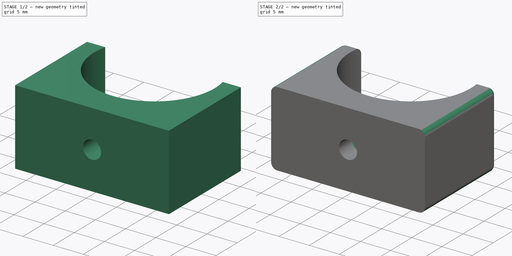
[diagram: build sequence overview — one tinted view per stage of 2, left to right]
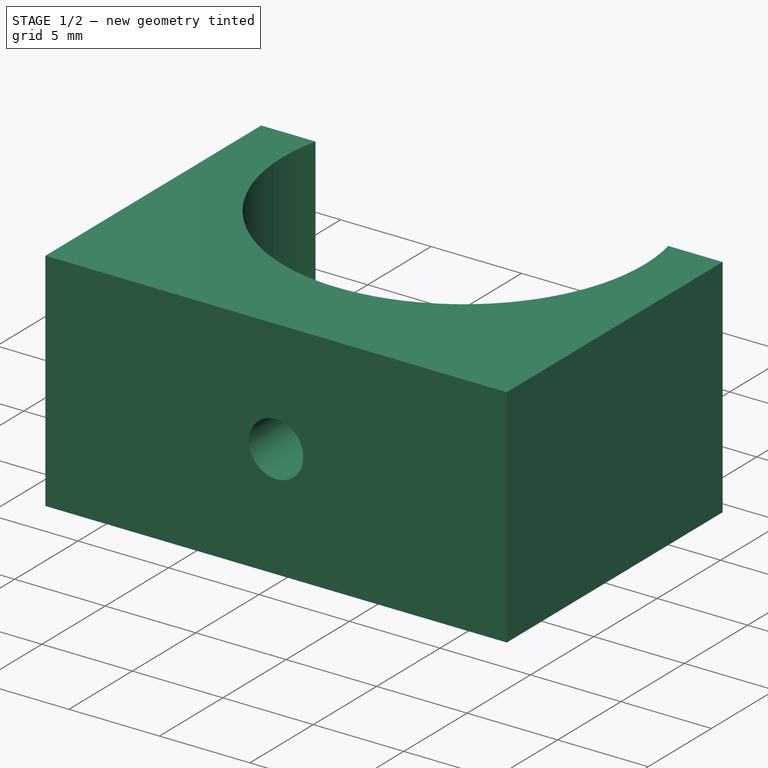
[diagram: stage 1 of 2 — iso view after this stage's code; geometry added in this stage tinted green]
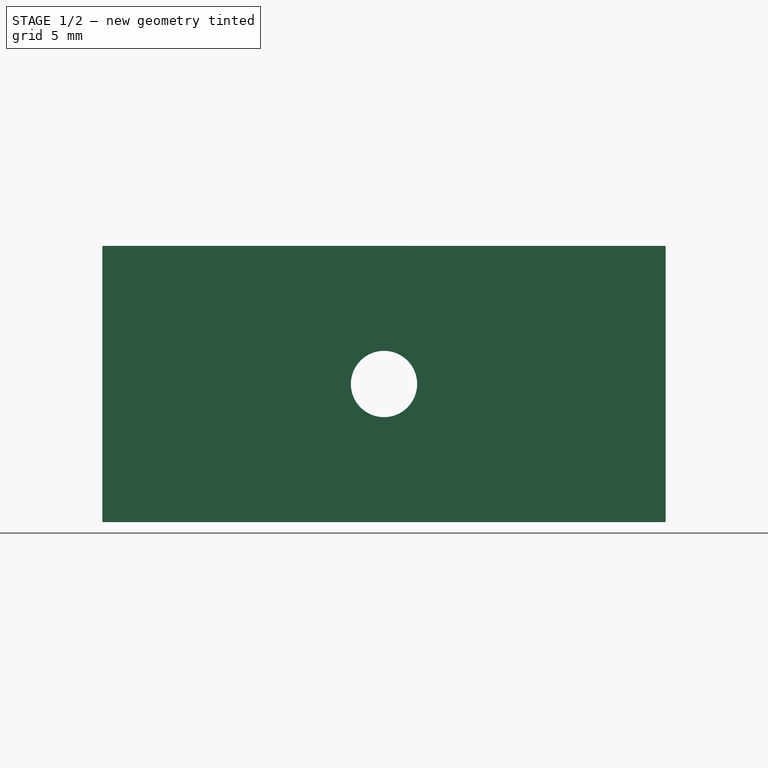
[diagram: stage 1 of 2 — front view after this stage's code; geometry added in this stage tinted green]
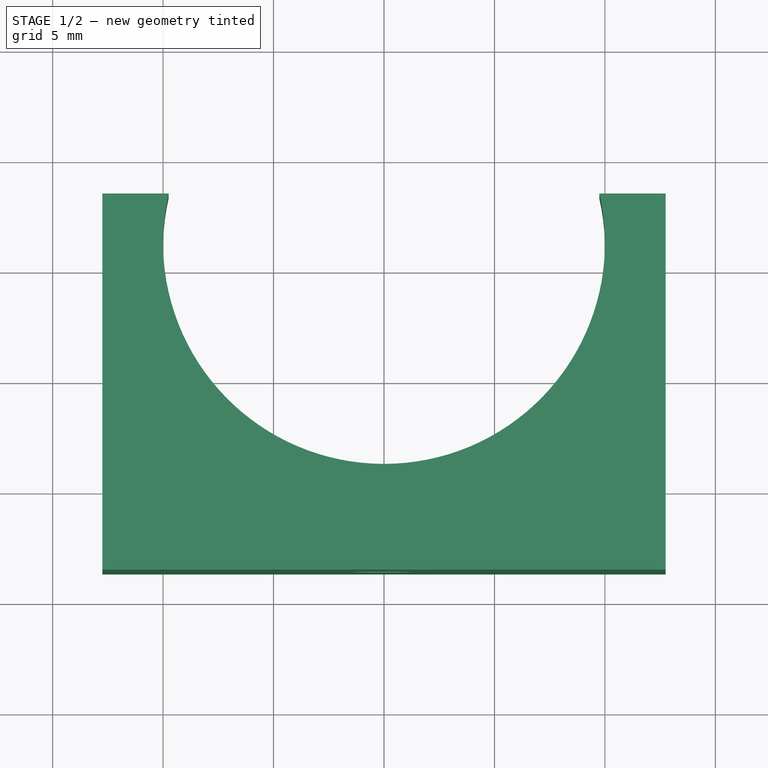
[diagram: stage 1 of 2 — top view after this stage's code; geometry added in this stage tinted green]
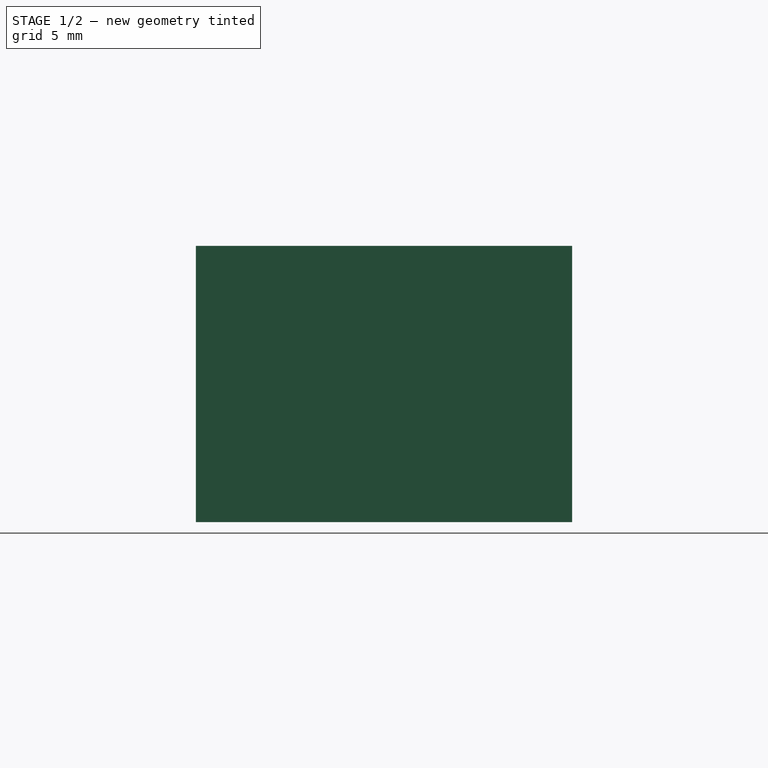
[diagram: stage 1 of 2 — right view after this stage's code; geometry added in this stage tinted green]
FCSTD DOCUMENT  (FreeCAD 0.20R29177 (Git))
Label: Glue Clip
License: All rights reserved
LicenseURL: http://en.wikipedia.org/wiki/All_rights_reserved
objects: Sketcher::SketchObject×3, PartDesign::Pocket×2, PartDesign::Pad×1, PartDesign::Fillet×1, PartDesign::Body×1
note: 12 computed .brp shape members not serialized (recipe doc carries the construction recipe); baked Part::Feature solids carry a one-line shape summary decoded from their .brp

FEATURE [Sketcher::SketchObject] Sketch
  FullyConstrained = false
  MapMode = 5
  Support = -> [XY_Plane]
  sketch-geometry (7):
    g0: LineSegment StartX=-12.746 StartY=-3.65062 StartZ=0 EndX=12.746 EndY=-3.65062 EndZ=0
    g1: GeomPoint X=0 Y=-3.65062 Z=0
    g2: ArcOfCircle CenterX=1e-16 CenterY=11.1391 CenterZ=0 NormalX=0 NormalY=0 NormalZ=1 AngleXU=0 Radius=10 StartAngle=2.91572 EndAngle=6.50906
    g3: LineSegment StartX=-12.746 StartY=13.3786 StartZ=0 EndX=-9.74599 EndY=13.3786 EndZ=0
    g4: LineSegment StartX=9.74599 StartY=13.3786 StartZ=0 EndX=12.746 EndY=13.3786 EndZ=0
    g5: LineSegment StartX=12.746 StartY=13.3786 StartZ=0 EndX=12.746 EndY=-3.65062 EndZ=0
    g6: LineSegment StartX=-12.746 StartY=-3.65062 StartZ=0 EndX=-12.746 EndY=13.3786 EndZ=0
  constraints (17):
    c: Horizontal(g0)
    c: PointOnObject(g1,g-2)
    c: Symmetric(g0,g0,g1)
    c: Horizontal(g4,g3)
    c: Coincident(g3,g2)
    c: Horizontal(g3)
    c: Coincident(g4,g2)
    c: Horizontal(g4)
    c: Diameter(g2) = 20
    c: DistanceX(g3,g3) = 3
    c: Coincident(g5,g4)
    c: Coincident(g5,g0)
    c: Vertical(g5)
    c: Coincident(g6,g0)
    c: Coincident(g6,g3)
    c: Vertical(g6)
    c: Equal(g4,g3)
FEATURE [PartDesign::Pad] Pad
  Direction = (0,0,1)
  Length = 12.5
  Length2 = 10
  Profile = -> Sketch
  ReferenceAxis = -> Sketch [N_Axis]
  Type = 0
FEATURE [Sketcher::SketchObject] Sketch001
  ExternalGeometry = -> [Pad]
  FullyConstrained = true
  MapMode = 5
  Placement = pos=(0,-3.65062,0) rot=(1,0,0;1.5708rad)
  Support = -> [Pad]
  sketch-geometry (2):
    g0: Circle CenterX=0 CenterY=6.25 CenterZ=0 NormalX=0 NormalY=0 NormalZ=1 AngleXU=0 Radius=1.5
    g1: GeomPoint X=0 Y=12.5 Z=0
  constraints (4):
    c: PointOnObject(g0,g-2)
    c: Diameter(g0) = 3
    c: PointOnObject(g1,g-3)
    c: Symmetric(g1,g-1,g0)
FEATURE [PartDesign::Pocket] Pocket
  BaseFeature = -> Pad
  Direction = (0,1,-2e-16)
  Length = 5
  Length2 = 5
  Profile = -> Sketch001
  ReferenceAxis = -> Sketch001 [N_Axis]
  Type = 1
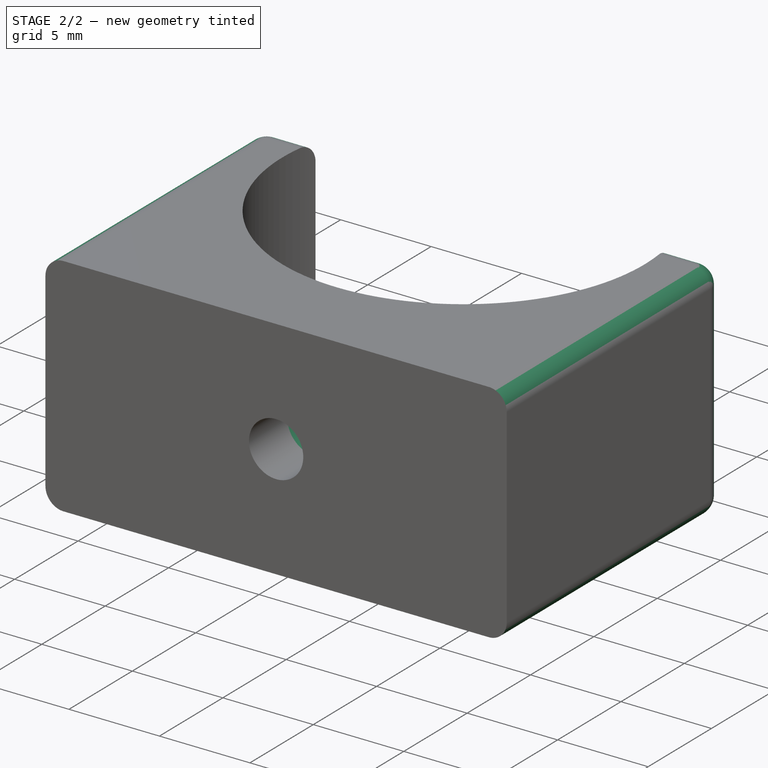
[diagram: stage 2 of 2 — iso view after this stage's code; geometry added in this stage tinted green]
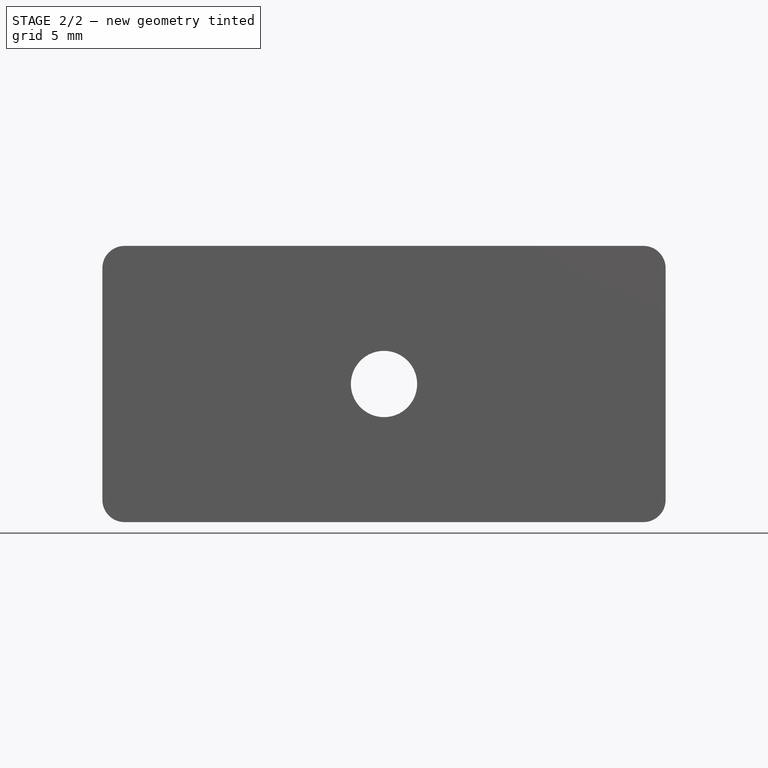
[diagram: stage 2 of 2 — front view after this stage's code; geometry added in this stage tinted green]
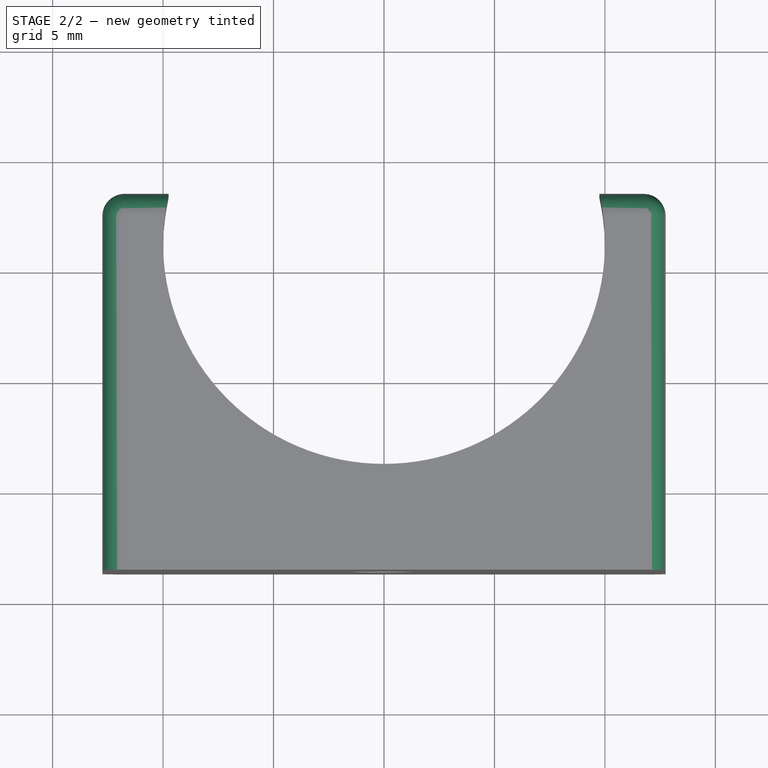
[diagram: stage 2 of 2 — top view after this stage's code; geometry added in this stage tinted green]
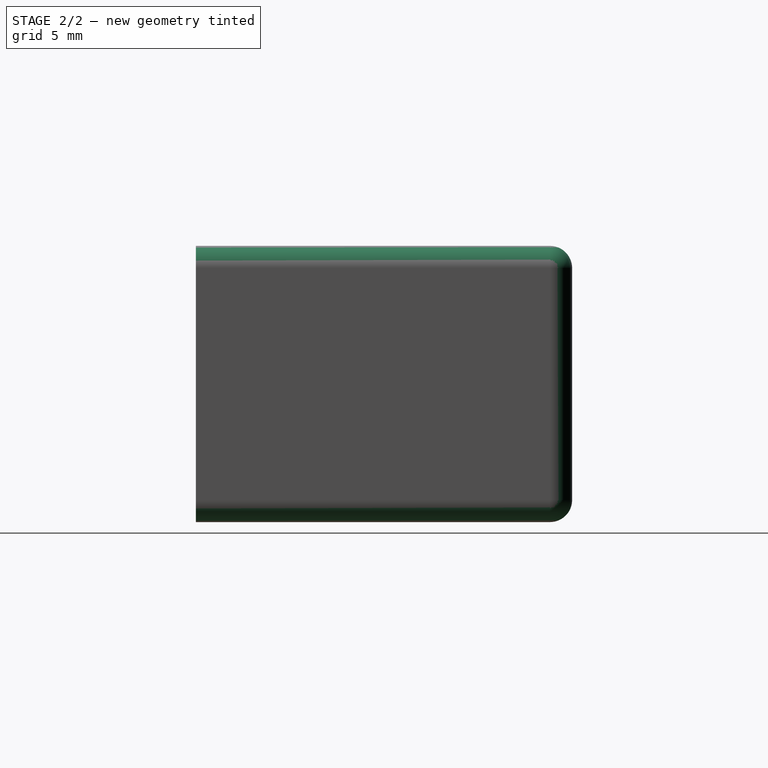
[diagram: stage 2 of 2 — right view after this stage's code; geometry added in this stage tinted green]
FEATURE [Sketcher::SketchObject] Sketch002
  ExternalGeometry = -> [Pocket]
  FullyConstrained = true
  MapMode = 5
  Placement = pos=(0,13.3786,0) rot=(0,0.707107,0.707107;3.14159rad)
  Support = -> [Pocket]
  sketch-geometry (1):
    g0: Circle CenterX=0 CenterY=6.25 CenterZ=0 NormalX=0 NormalY=0 NormalZ=1 AngleXU=0 Radius=3
  constraints (2):
    c: Coincident(g0,g-3)
    c: Diameter(g0) = 6
FEATURE [PartDesign::Pocket] Pocket001
  BaseFeature = -> Pocket
  Direction = (0,-1,2e-16)
  Length = 14
  Length2 = 5
  Profile = -> Sketch002
  ReferenceAxis = -> Sketch002 [N_Axis]
  Type = 0
FEATURE [PartDesign::Fillet] Fillet
  Base = -> Pocket001 [Edge13,Edge17,Edge9,Edge8,Edge6,Edge7,Edge16,Edge12,Edge10,Edge14]
  BaseFeature = -> Pocket001
  Radius = 1
  SupportTransform = false
  UseAllEdges = false
FEATURE [PartDesign::Body] Body
  Group = -> [Sketch,Pad,Sketch001,Pocket,Sketch002,Pocket001,Fillet]
  Origin = -> Origin
  Tip = -> Fillet
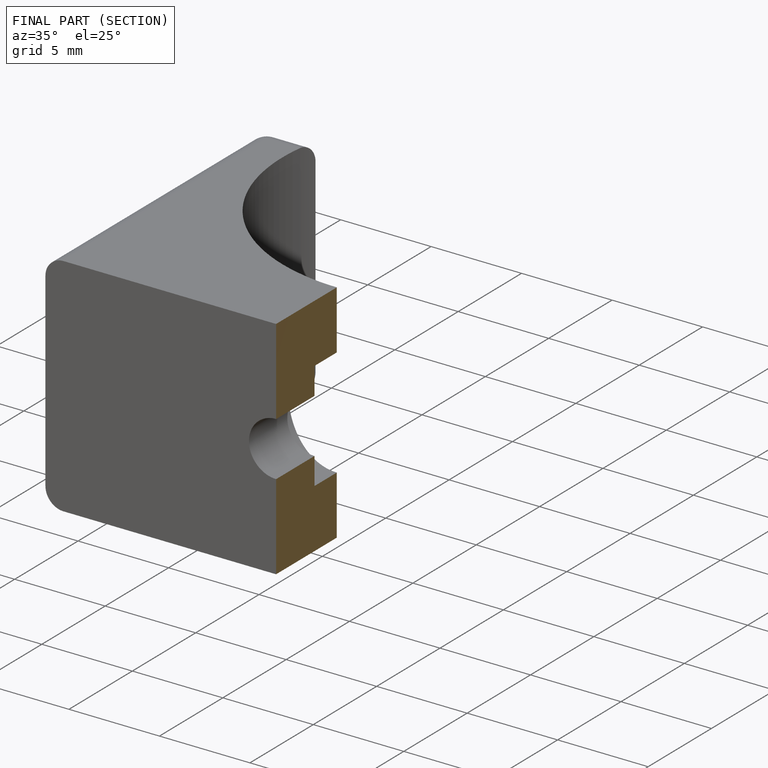
[diagram: finished part — half-section view (interior)]
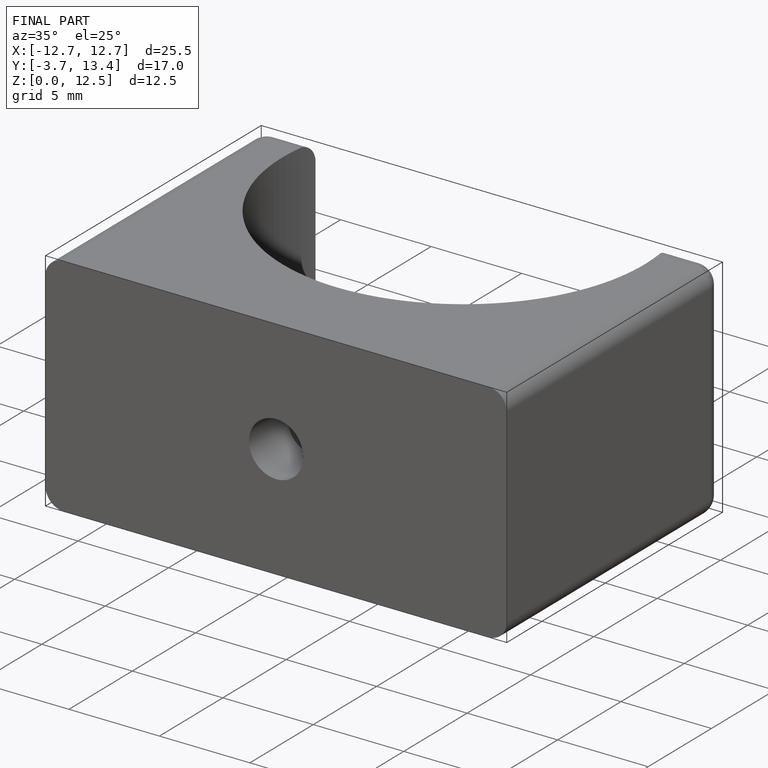
[diagram: finished part — iso view with bounding-box wireframe]
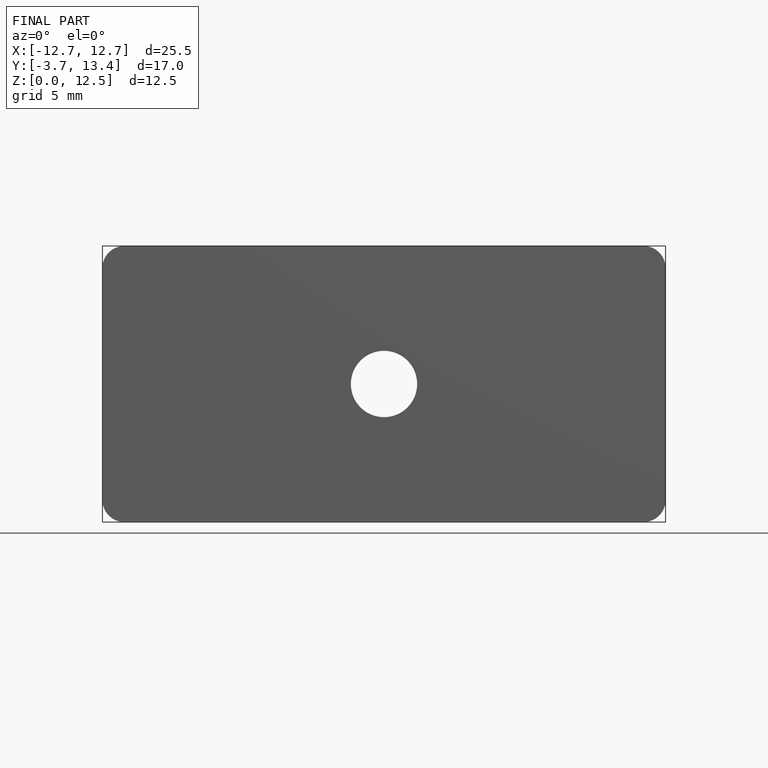
[diagram: finished part — front view with bounding-box wireframe]
